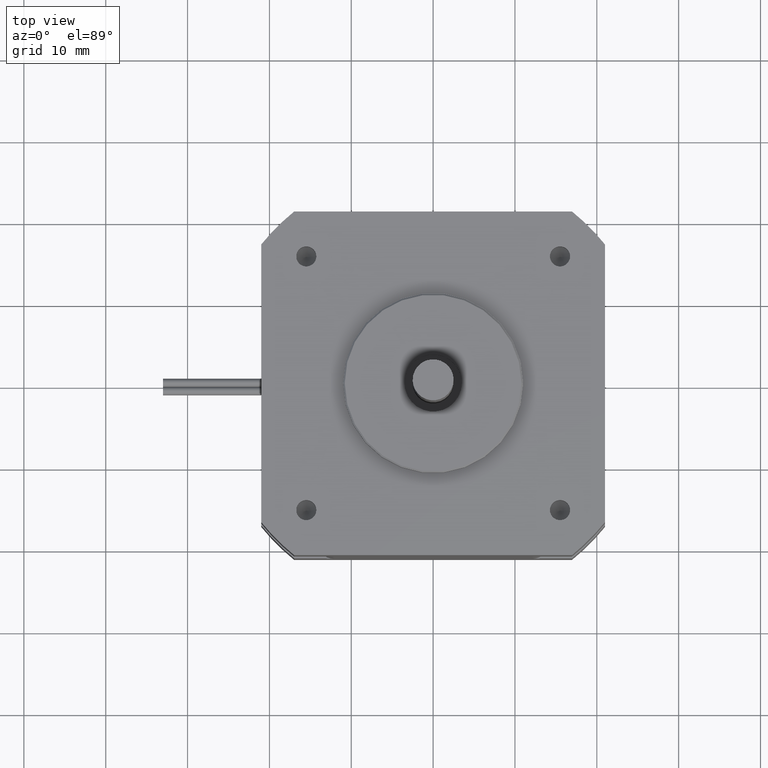
[diagram: clean part render]
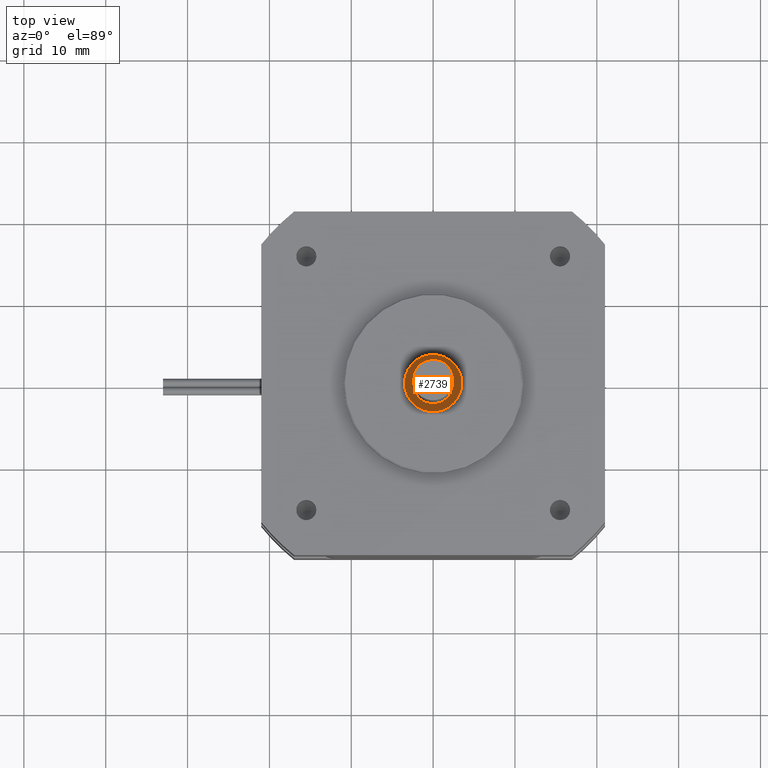
[diagram: same view with one face highlighted and labeled with its STEP entity id]
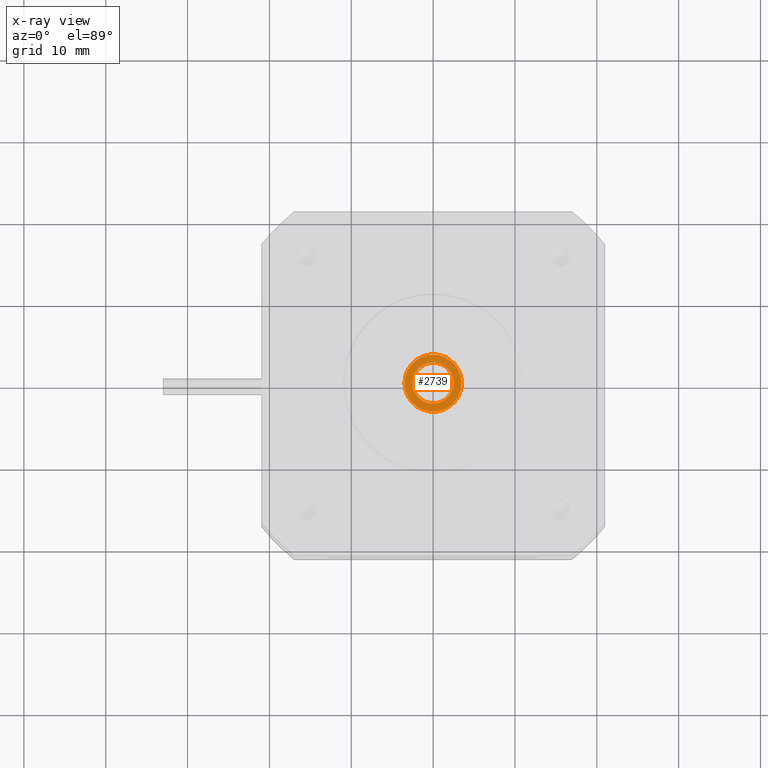
[diagram: x-ray of the same camera — body ghosted, the highlighted face saturated]
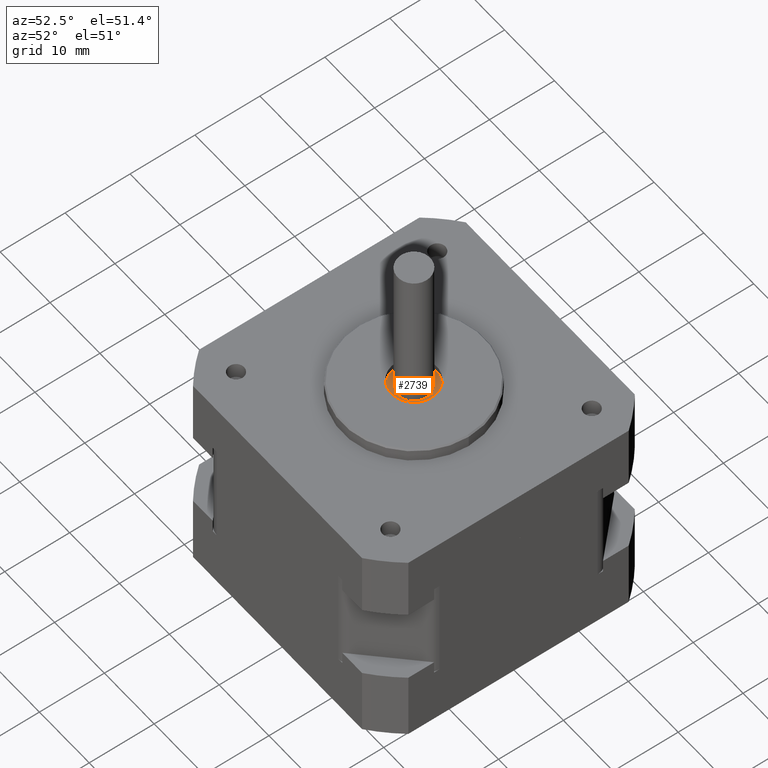
[diagram: same view with one face highlighted and labeled with its STEP entity id]
A machine part, top view. The second image highlights one B-rep face of the part: STEP entity #2739.
The next image is the same camera in x-ray: the body ghosted, the highlighted face saturated — about 11% of this face is hidden behind the body in this view.
A second angle (auxiliary view) of the same face is appended — the face is thin or edge-on in the first view.
In plain terms, the highlighted planar face has unit normal (0, 0, 1).
Its self-contained STEP definition (entity closure, byte-faithful):
#40=FACE_BOUND('',#453,.T.);
#150=PLANE('',#2971);
#257=FACE_OUTER_BOUND('',#452,.T.);
#452=EDGE_LOOP('',(#1901));
#453=EDGE_LOOP('',(#1902));
#1014=CIRCLE('',#2972,3.5);
#1015=CIRCLE('',#2973,2.5);
#1227=VERTEX_POINT('',#4406);
#1228=VERTEX_POINT('',#4408);
#1486=EDGE_CURVE('',#1227,#1227,#1014,.T.);
#1487=EDGE_CURVE('',#1228,#1228,#1015,.T.);
#1901=ORIENTED_EDGE('',*,*,#1486,.T.);
#1902=ORIENTED_EDGE('',*,*,#1487,.F.);
#2739=ADVANCED_FACE('',(#257,#40),#150,.T.);
#2971=AXIS2_PLACEMENT_3D('',#4405,#3476,#3477);
#2972=AXIS2_PLACEMENT_3D('',#4407,#3478,#3479);
#2973=AXIS2_PLACEMENT_3D('',#4409,#3480,#3481);
#3476=DIRECTION('center_axis',(0.,0.,1.));
#3477=DIRECTION('ref_axis',(1.,7.63139177052848E-16,0.));
#3478=DIRECTION('center_axis',(0.,0.,1.));
#3479=DIRECTION('ref_axis',(1.,7.63139177052848E-16,0.));
#3480=DIRECTION('center_axis',(0.,0.,1.));
#3481=DIRECTION('ref_axis',(1.,7.63139177052848E-16,0.));
#4405=CARTESIAN_POINT('Origin',(4.44089209850063E-15,-3.67356583030809E-15,
17.35));
#4406=CARTESIAN_POINT('',(3.5,-1.00257871062312E-15,17.35));
#4407=CARTESIAN_POINT('Origin',(4.44089209850063E-15,-3.67356583030809E-15,
17.35));
#4408=CARTESIAN_POINT('',(-2.5,-5.8875653613958E-15,17.35));
#4409=CARTESIAN_POINT('Origin',(4.44089209850063E-15,-3.67356583030809E-15,
17.35));